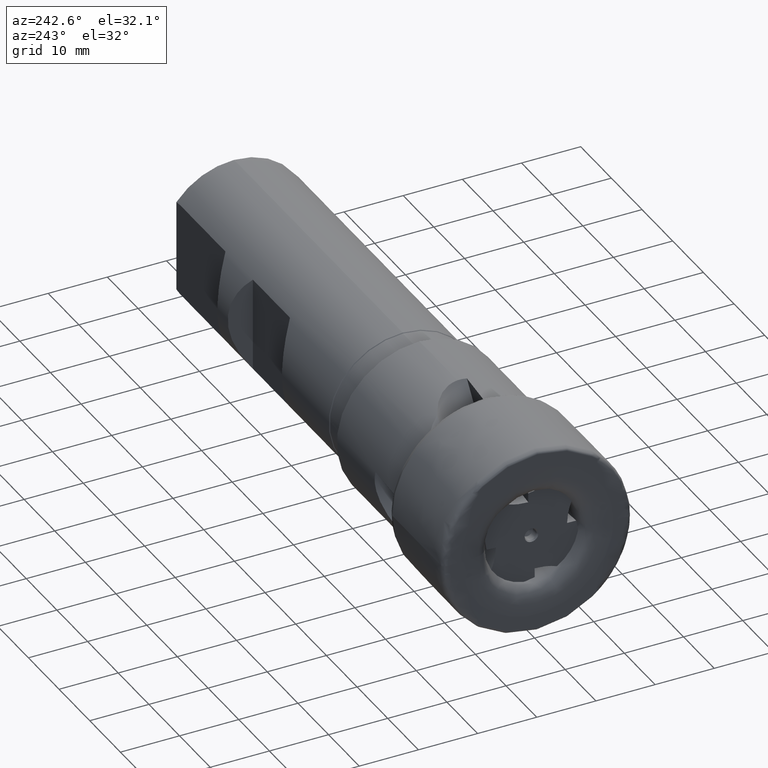
[diagram: clean part render]
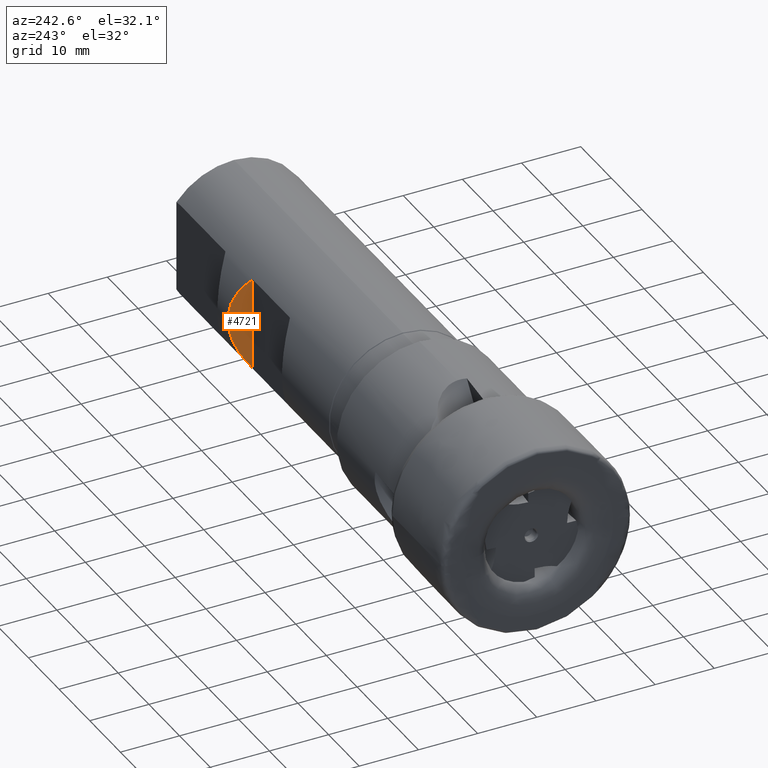
[diagram: same view with one face highlighted and labeled with its STEP entity id]
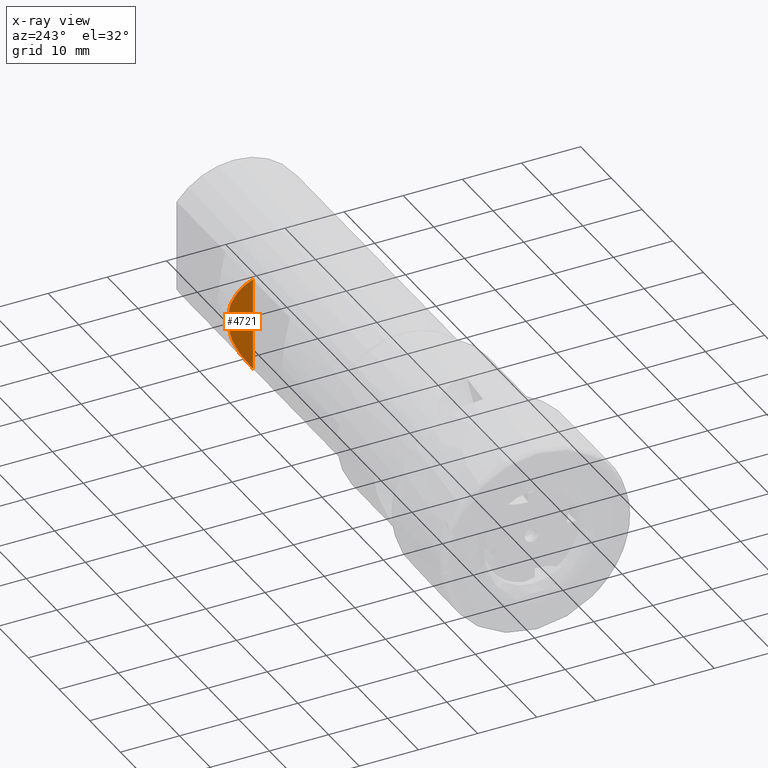
[diagram: x-ray of the same camera — body ghosted, the highlighted face saturated]
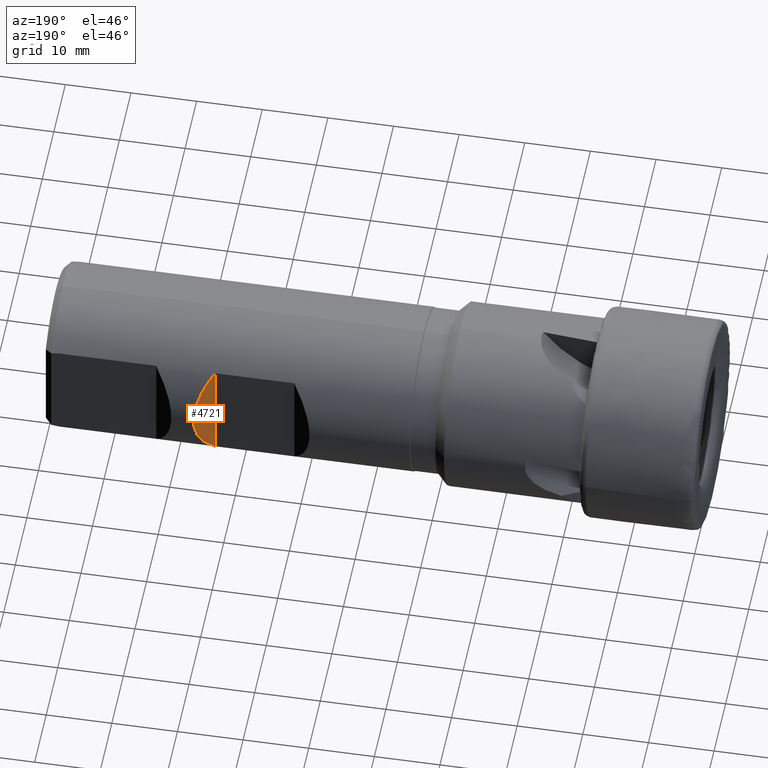
[diagram: same view with one face highlighted and labeled with its STEP entity id]
A machine part, auxiliary view. The second image highlights one B-rep face of the part: STEP entity #4721.
The next image is the same camera in x-ray: the body ghosted, the highlighted face saturated — about 0% of this face is hidden behind the body in this view.
A second angle (auxiliary view) of the same face is appended — the face is thin or edge-on in the first view.
In plain terms, the highlighted planar face has unit normal (0.7071, -0.7071, 0).
Its self-contained STEP definition (entity closure, byte-faithful):
#38 =( BOUNDED_CURVE ( )  B_SPLINE_CURVE ( 3, ( #1768, #1692, #3803, #3804 ),
 .UNSPECIFIED., .F., .T. ) 
 B_SPLINE_CURVE_WITH_KNOTS ( ( 4, 4 ),
 ( 2.459095336313821300, 3.824089970865765000 ),
 .UNSPECIFIED. ) 
 CURVE ( )  GEOMETRIC_REPRESENTATION_ITEM ( )  RATIONAL_B_SPLINE_CURVE ( ( 1.000000000000000000, 0.8506666666666666800, 0.8506666666666666800, 1.000000000000000000 ) ) 
 REPRESENTATION_ITEM ( '' )  );
#496 = FACE_OUTER_BOUND ( 'NONE', #5565, .T. ) ;
#1692 = CARTESIAN_POINT ( 'NONE',  ( 77.04717868338553900, 13.59717868338557900, -3.089404912919598200 ) ) ;
#1768 = CARTESIAN_POINT ( 'NONE',  ( 73.14999999999999100, 9.699999999999999300, -7.884161337770813700 ) ) ;
#2051 = CARTESIAN_POINT ( 'NONE',  ( 76.04999999999998300, 12.60000000000000000, -10.00000000000000000 ) ) ;
#2053 = PLANE ( 'NONE',  #2333 ) ;
#2055 = DIRECTION ( 'NONE',  ( 0.7071067811865493500, -0.7071067811865456900, 0.0000000000000000000 ) ) ;
#2056 = DIRECTION ( 'NONE',  ( 0.7071067811865456900, 0.7071067811865493500, 0.0000000000000000000 ) ) ;
#2333 = AXIS2_PLACEMENT_3D ( 'NONE', #2051, #2055, #2056 ) ;
#2618 = LINE ( 'NONE', #3615, #2619 ) ;
#2619 = VECTOR ( 'NONE', #3616, 1000.000000000000000 ) ;
#3102 = CARTESIAN_POINT ( 'NONE',  ( 73.14999999999999100, 9.699999999999999300, 7.884161337770813700 ) ) ;
#3207 = CARTESIAN_POINT ( 'NONE',  ( 73.14999999999999100, 9.699999999999999300, -7.884161337770813700 ) ) ;
#3615 = CARTESIAN_POINT ( 'NONE',  ( 73.14999999999999100, 9.699999999999999300, -10.00000000000000000 ) ) ;
#3616 = DIRECTION ( 'NONE',  ( -0.0000000000000000000, -0.0000000000000000000, 1.000000000000000000 ) ) ;
#3803 = CARTESIAN_POINT ( 'NONE',  ( 77.04717868338553900, 13.59717868338558400, 3.089404912919595500 ) ) ;
#3804 = CARTESIAN_POINT ( 'NONE',  ( 73.14999999999999100, 9.699999999999999300, 7.884161337770813700 ) ) ;
#4303 = EDGE_CURVE ( 'NONE', #5186, #5082, #38, .T. ) ;
#4721 = ADVANCED_FACE ( 'NONE', ( #496 ), #2053, .F. ) ;
#4832 = ORIENTED_EDGE ( 'NONE', *, *, #4303, .F. ) ;
#4863 = ORIENTED_EDGE ( 'NONE', *, *, #5924, .T. ) ;
#5082 = VERTEX_POINT ( 'NONE', #3102 ) ;
#5186 = VERTEX_POINT ( 'NONE', #3207 ) ;
#5565 = EDGE_LOOP ( 'NONE', ( #4832, #4863 ) ) ;
#5924 = EDGE_CURVE ( 'NONE', #5186, #5082, #2618, .T. ) ;